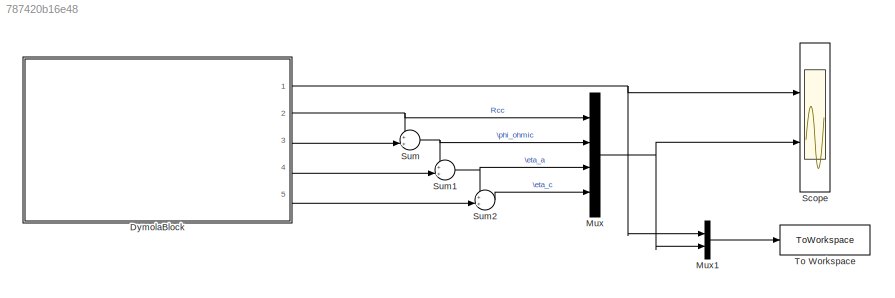
MODEL slx_787420b16e48
KIND model
CONFIG AbsTol = auto
CONFIG EnableMultiTasking = off
CONFIG FixedStep = auto
CONFIG MaxStep = auto
CONFIG MinStep = auto
CONFIG RelTol = 1e-3
CONFIG SampleTimeConstraint = Unconstrained
CONFIG SolverName = VariableStepAuto
CONFIG StartTime = 0.0
CONFIG StopTime = 1
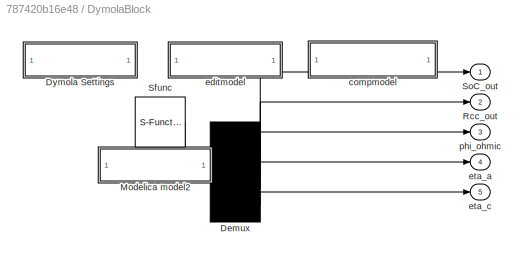
BLOCK [SubSystem] DymolaBlock
  CopyFcn = newDymolaGui('21-Aug-2022 21:54:25#9058','Copy');
  DeleteFcn = if exist('newDymolaGui') newDymolaGui('Ro_contributions/DymolaBlock','Delete'); end;
  NameChangeFcn = newDymolaGui('21-Aug-2022 21:54:25#9058','Copy');
  OpenFcn = newDymolaGui('Ro_contributions/DymolaBlock','Init');
  Ports = [0, 5]
  RequestExecContextInheritance = off
  Tag = 21-Aug-2022 21:54:25#9058
  UserDataPersistent = on
BLOCK [Demux] DymolaBlock/Demux
  Outputs = [1;1;1;1;1]
  Ports = [1, 5]
BLOCK [SubSystem] DymolaBlock/Dymola Settings
  Ports = []
  RequestExecContextInheritance = off
BLOCK [SubSystem] DymolaBlock/Modelica model2
  Ports = []
  RequestExecContextInheritance = off
BLOCK [Outport] DymolaBlock/Rcc_out
  Port = 2
BLOCK [S-Function] DymolaBlock/Sfunc
  EnableBusSupport = off
  FunctionName = cu_irp_perrinn__dy9058eanip
  Parameters = [Temp_k;radius_c_k;ro_multiSum_significantDi3;ro_multiSum_k;ro_sigma_e1_T_square_sign5;ro_sigma_e1_K00_k;ro_sigma_e1_multiSum_sign7;ro_sigma_e1_multiSum_k;ro_sigma_e1_K01_k;ro_sigma_e1_K02_k;ro_sigma_e1_K11_k;ro_sigma_e1_K12_k;ro_sigma_e1_K21_k;ro_sigma_e1_K20_k;ro_sigma_e1_K10_k;ro_sigma_e1_add3_1_k1;ro_sigma_e1_add3_1_k2;ro_sigma_e1_add3_1_k3;ro_sigma_e1_add_k1;ro_sigma_e1_add_k2;ro_sigma_e1_Gai...<+329ch>
  PortCounts = [0;1]
  Ports = [0, 1]
  SFcnIsStateOwnerBlock = off
  SFunctionDeploymentMode = off
  Tag = 9058eanip
BLOCK [Outport] DymolaBlock/SoC_out
BLOCK [SubSystem] DymolaBlock/compmodel
  InitFcn = newDymolaGui('Ro_contributions/DymolaBlock','Verify');
  OpenFcn = compileModelica('Ro_contributions/DymolaBlock');
  Ports = []
  RequestExecContextInheritance = off
BLOCK [SubSystem] DymolaBlock/editmodel
  OpenFcn = editModelica('Ro_contributions/DymolaBlock');
  Ports = []
  RequestExecContextInheritance = off
BLOCK [Outport] DymolaBlock/eta_a
  Port = 4
BLOCK [Outport] DymolaBlock/eta_c
  Port = 5
BLOCK [Outport] DymolaBlock/phi_ohmic
  Port = 3
BLOCK [Mux] Mux
  DisplayOption = bar
  Ports = [4, 1]
BLOCK [Mux] Mux1
  DisplayOption = bar
  Inputs = 2
  Ports = [2, 1]
BLOCK [Scope] Scope
  Floating = off
  NumInputPorts = 2
  Ports = [2]
  ScopeSpecificationString = Simulink.scopes.TimeScopeBlockCfg('CurrentConfiguration', extmgr.ConfigurationSet(extmgr.Configuration('Core','General UI',true),extmgr.Configuration('Core','Source UI',true),extmgr.Configuration('Sources','WiredSimulink',true),extmgr.Configuration('Visuals','Time Domain',true,'SerializedDisplays',{struct('MinYLimReal','-0.125','MaxYLimReal','1.125','YLabelReal','','MinYLimMag','0.00000','MaxYLimM...<+2055ch>
BLOCK [Sum] Sum
  Inputs = ++|
  Ports = [2, 1]
BLOCK [Sum] Sum1
  Inputs = ++|
  Ports = [2, 1]
BLOCK [Sum] Sum2
  Inputs = ++|
  Ports = [2, 1]
BLOCK [ToWorkspace] To Workspace
  FixptAsFi = on
  MaxDataPoints = inf
  Ports = [1]
  SampleTime = -1
  SaveFormat = Timeseries
  VariableName = simout
LINE DymolaBlock/Demux:1 -> DymolaBlock/SoC_out:1
LINE DymolaBlock/Demux:2 -> DymolaBlock/Rcc_out:1
LINE DymolaBlock/Demux:3 -> DymolaBlock/phi_ohmic:1
LINE DymolaBlock/Demux:4 -> DymolaBlock/eta_a:1
LINE DymolaBlock/Demux:5 -> DymolaBlock/eta_c:1
LINE DymolaBlock/Sfunc:1 -> DymolaBlock/Demux:1
NET DymolaBlock:1 -> Mux1:1, Scope:1
NET DymolaBlock:2 -> Mux:1, Sum:1
LINE DymolaBlock:3 -> Sum:2
LINE DymolaBlock:4 -> Sum1:2
LINE DymolaBlock:5 -> Sum2:2
LINE Mux1:1 -> To Workspace:1
NET Mux:1 -> Mux1:2, Scope:2
NET Sum1:1 -> Mux:3, Sum2:1
LINE Sum2:1 -> Mux:4
NET Sum:1 -> Mux:2, Sum1:1
note: NET lines group one-source signal fan-out (src -> all destinations, sorted); 1:1 wires keep LINE
